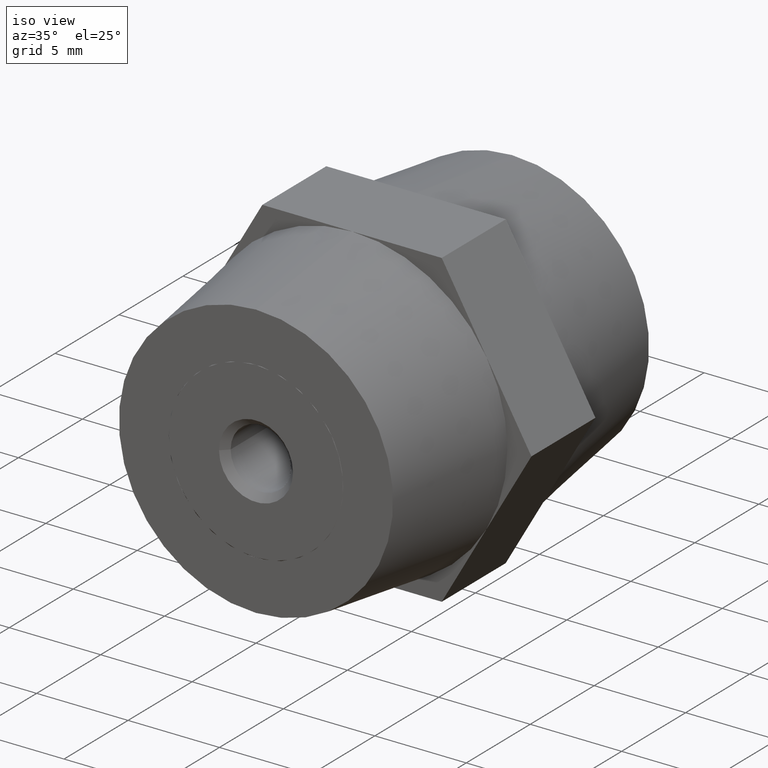
[diagram: clean part render]
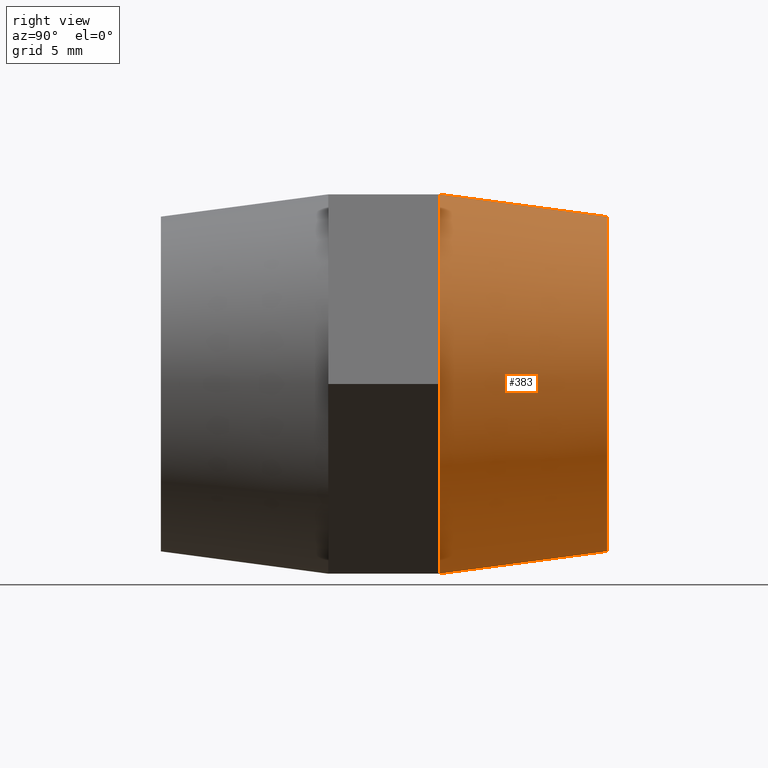
[diagram: tour spotlight — one face highlighted and labeled with its STEP entity id]
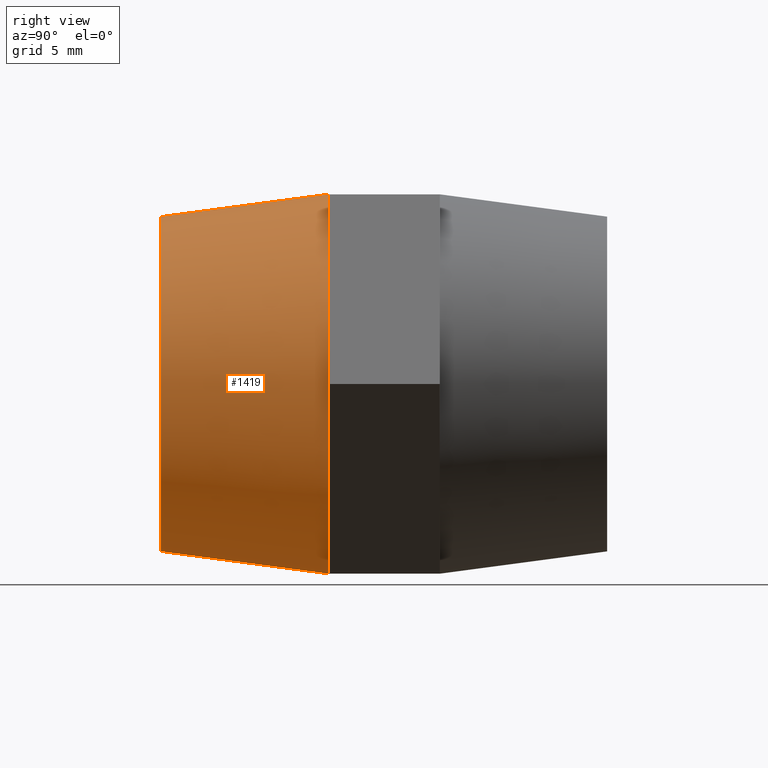
[diagram: tour spotlight — one face highlighted and labeled with its STEP entity id]
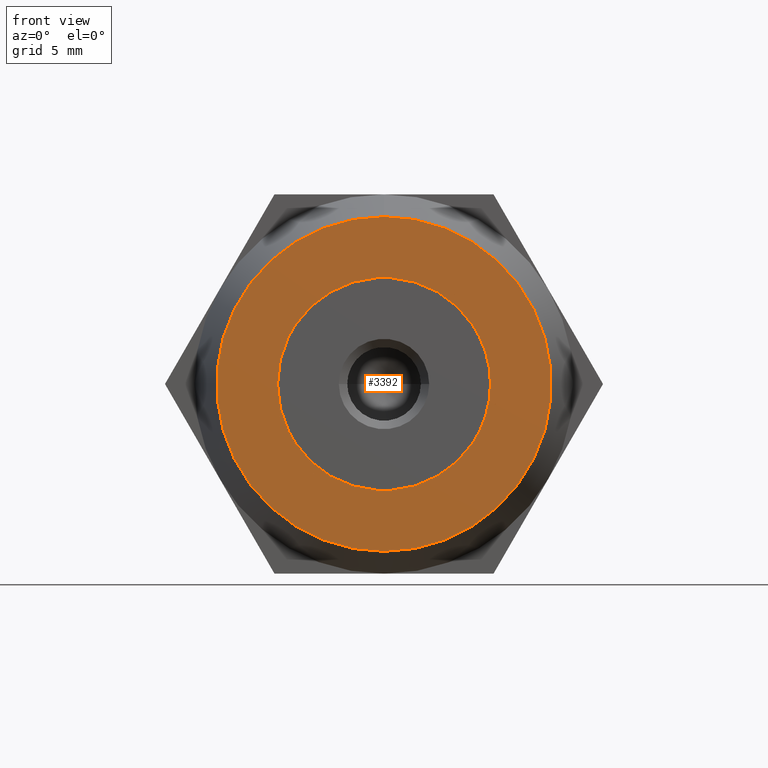
[diagram: tour spotlight — one face highlighted and labeled with its STEP entity id]
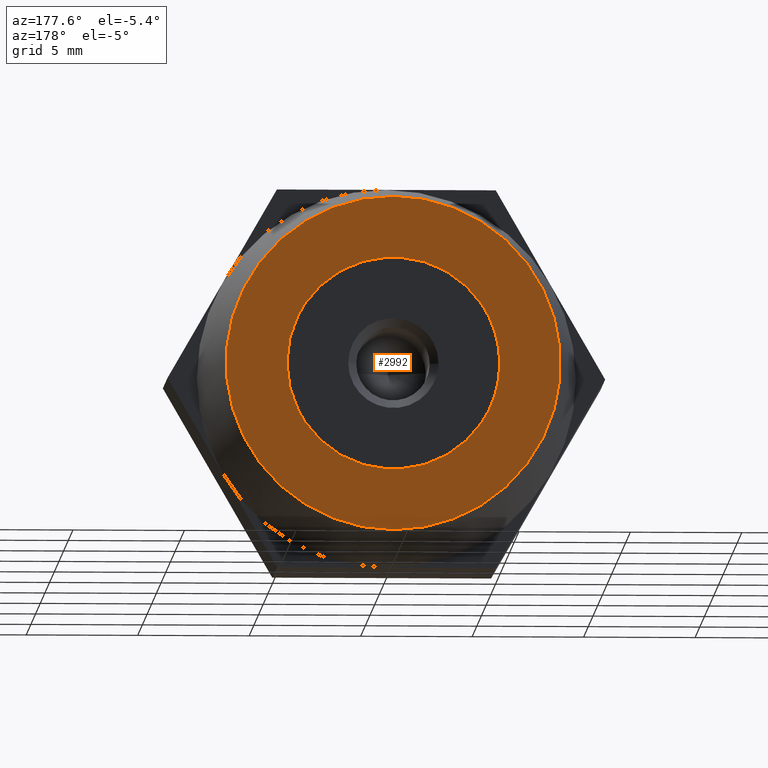
[diagram: tour spotlight — one face highlighted and labeled with its STEP entity id]
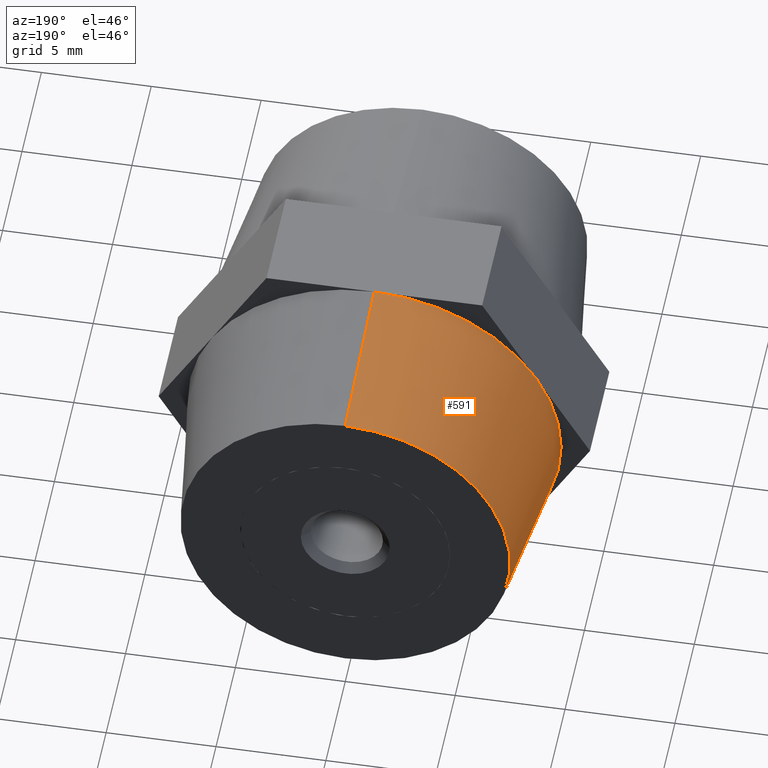
[diagram: tour spotlight — one face highlighted and labeled with its STEP entity id]
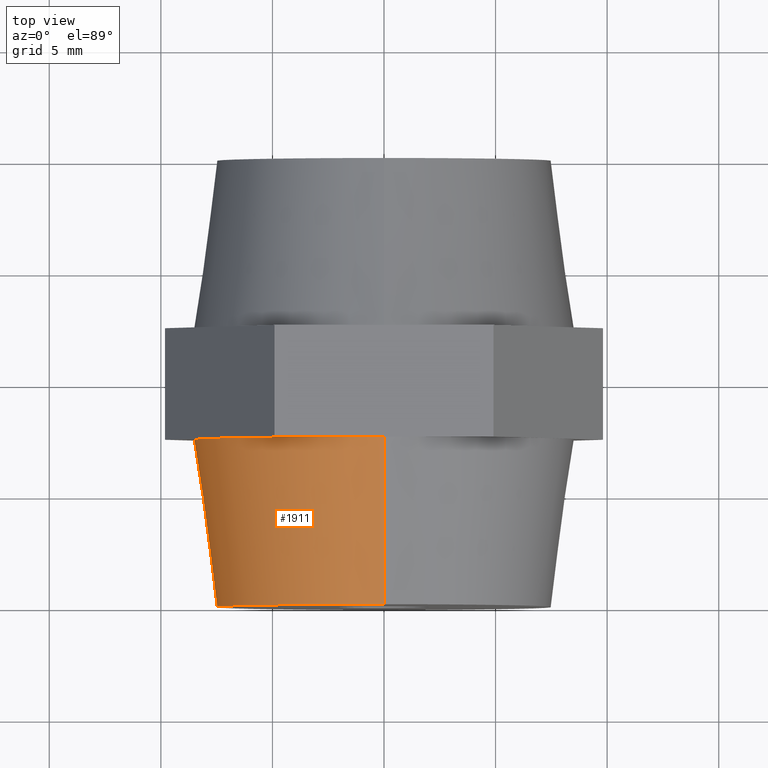
[diagram: tour spotlight — one face highlighted and labeled with its STEP entity id]
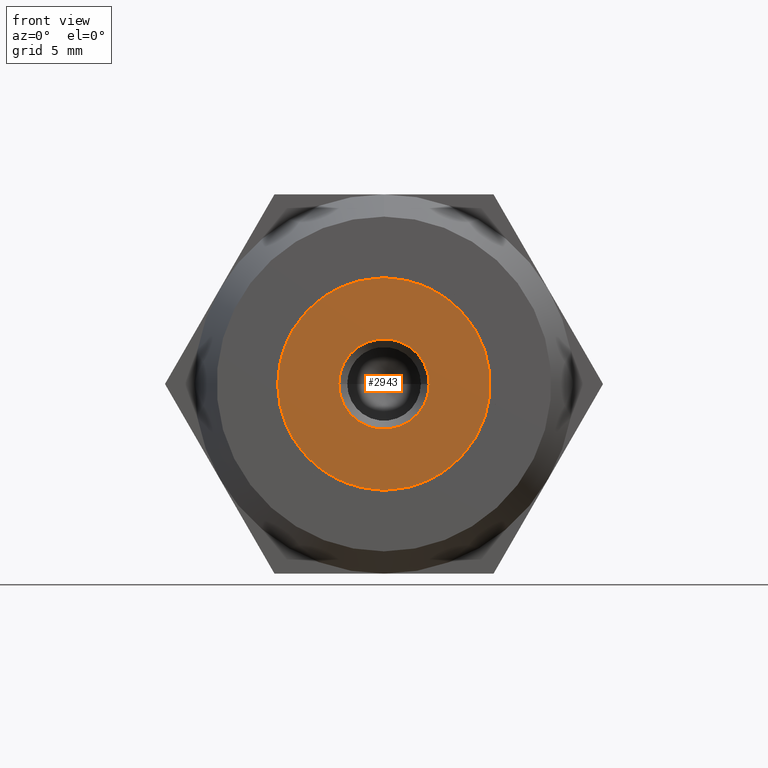
[diagram: tour spotlight — one face highlighted and labeled with its STEP entity id]
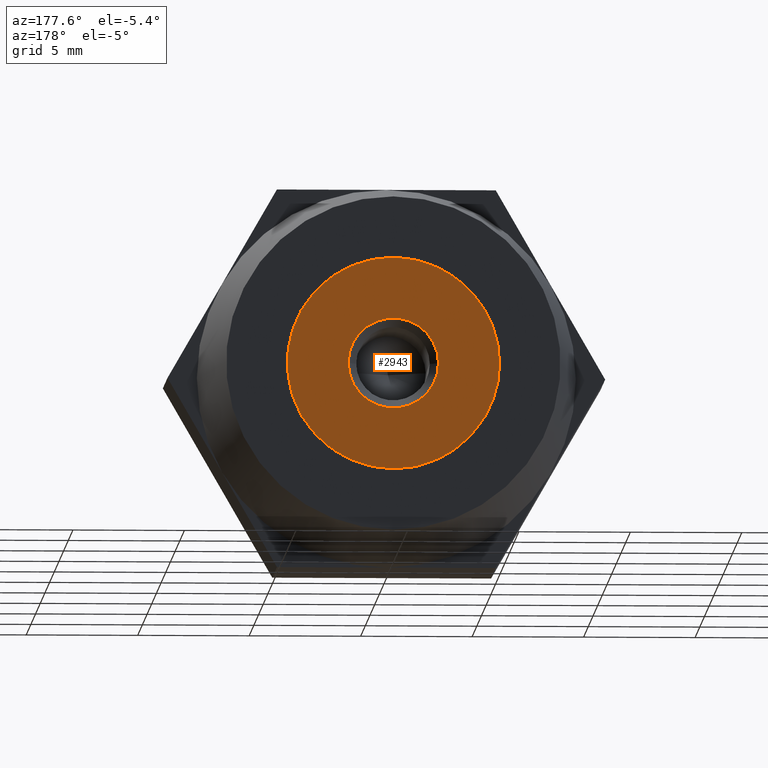
[diagram: tour spotlight — one face highlighted and labeled with its STEP entity id]
A machine part: a face-by-face anatomy tour. The part has 162 B-rep faces; the first image is the clean iso view, then the 8 largest visible faces are spotlighted one at a time (largest first), each with its STEP entity span.

Face 1 — right view, entity #383. In plain terms, the highlighted conical surface has half-angle 7.595 deg.
Definition (entity closure, byte-faithful):
#18 = ORIENTED_EDGE ( 'NONE', *, *, #3095, .T. ) ;
#34 = EDGE_CURVE ( 'NONE', #3530, #1343, #3333, .T. ) ;
#206 = DIRECTION ( 'NONE',  ( 0.0000000000000000000, -0.9912279006826346700, -0.1321637200910179600 ) ) ;
#244 = DIRECTION ( 'NONE',  ( 0.0000000000000000000, 0.0000000000000000000, 1.000000000000000000 ) ) ;
#383 = ADVANCED_FACE ( 'NONE', ( #2794 ), #2966, .T. ) ;
#404 = DIRECTION ( 'NONE',  ( 0.0000000000000000000, 1.000000000000000000, 0.0000000000000000000 ) ) ;
#412 = EDGE_CURVE ( 'NONE', #1343, #2049, #1372, .T. ) ;
#560 = CIRCLE ( 'NONE', #1794, 8.500000000000000000 ) ;
#678 = DIRECTION ( 'NONE',  ( 0.0000000000000000000, 0.0000000000000000000, 1.000000000000000000 ) ) ;
#699 = VERTEX_POINT ( 'NONE', #3367 ) ;
#710 = EDGE_LOOP ( 'NONE', ( #2679, #2877, #2391, #18, #2234, #1795 ) ) ;
#823 = CARTESIAN_POINT ( 'NONE',  ( 9.184850993605147900E-016, 10.00000000000000000, 7.500000000000000000 ) ) ;
#915 = CARTESIAN_POINT ( 'NONE',  ( 9.797174393178825700E-016, 10.00000000000000000, 7.500000000000000000 ) ) ;
#931 = DIRECTION ( 'NONE',  ( 0.0000000000000000000, 0.0000000000000000000, 1.000000000000000000 ) ) ;
#1012 = EDGE_CURVE ( 'NONE', #699, #2049, #560, .T. ) ;
#1082 = CARTESIAN_POINT ( 'NONE',  ( -1.502314598737160000E-015, 2.500000000000000000, 8.500000000000000000 ) ) ;
#1125 = CARTESIAN_POINT ( 'NONE',  ( 0.0000000000000000000, 10.00000000000000000, -7.500000000000000000 ) ) ;
#1343 = VERTEX_POINT ( 'NONE', #1125 ) ;
#1372 = LINE ( 'NONE', #3218, #3153 ) ;
#1399 = CARTESIAN_POINT ( 'NONE',  ( 0.0000000000000000000, 10.00000000000000000, 0.0000000000000000000 ) ) ;
#1401 = EDGE_CURVE ( 'NONE', #3530, #3276, #3365, .T. ) ;
#1410 = DIRECTION ( 'NONE',  ( 0.0000000000000000000, -1.000000000000000000, 0.0000000000000000000 ) ) ;
#1462 = CARTESIAN_POINT ( 'NONE',  ( 0.0000000000000000000, 10.00000000000000000, 0.0000000000000000000 ) ) ;
#1532 = AXIS2_PLACEMENT_3D ( 'NONE', #1399, #1410, #3466 ) ;
#1794 = AXIS2_PLACEMENT_3D ( 'NONE', #2196, #404, #931 ) ;
#1795 = ORIENTED_EDGE ( 'NONE', *, *, #412, .F. ) ;
#1867 = DIRECTION ( 'NONE',  ( 0.0000000000000000000, 1.000000000000000000, 0.0000000000000000000 ) ) ;
#2049 = VERTEX_POINT ( 'NONE', #3102 ) ;
#2051 = DIRECTION ( 'NONE',  ( 0.0000000000000000000, 1.000000000000000000, 0.0000000000000000000 ) ) ;
#2144 = CARTESIAN_POINT ( 'NONE',  ( 0.0000000000000000000, 2.500000000000000000, 0.0000000000000000000 ) ) ;
#2159 = DIRECTION ( 'NONE',  ( 0.0000000000000000000, 0.0000000000000000000, 1.000000000000000000 ) ) ;
#2182 = AXIS2_PLACEMENT_3D ( 'NONE', #2144, #2490, #2159 ) ;
#2196 = CARTESIAN_POINT ( 'NONE',  ( 0.0000000000000000000, 2.500000000000000000, 0.0000000000000000000 ) ) ;
#2234 = ORIENTED_EDGE ( 'NONE', *, *, #1012, .T. ) ;
#2362 = DIRECTION ( 'NONE',  ( 1.618538767728719100E-017, -0.9912279006826346700, 0.1321637200910179600 ) ) ;
#2391 = ORIENTED_EDGE ( 'NONE', *, *, #3765, .T. ) ;
#2474 = CARTESIAN_POINT ( 'NONE',  ( 0.0000000000000000000, 2.500000000000000000, 0.0000000000000000000 ) ) ;
#2480 = CARTESIAN_POINT ( 'NONE',  ( 7.361215932167730200, 2.500000000000000000, 4.250000000000000000 ) ) ;
#2490 = DIRECTION ( 'NONE',  ( 0.0000000000000000000, 1.000000000000000000, 0.0000000000000000000 ) ) ;
#2602 = CIRCLE ( 'NONE', #2182, 8.500000000000000000 ) ;
#2679 = ORIENTED_EDGE ( 'NONE', *, *, #34, .F. ) ;
#2688 = CIRCLE ( 'NONE', #3002, 8.500000000000000000 ) ;
#2794 = FACE_OUTER_BOUND ( 'NONE', #710, .T. ) ;
#2871 = VECTOR ( 'NONE', #2362, 1000.000000000000100 ) ;
#2877 = ORIENTED_EDGE ( 'NONE', *, *, #1401, .T. ) ;
#2966 = CONICAL_SURFACE ( 'NONE', #1532, 7.500000000000000000, 0.1325515322966740500 ) ;
#3002 = AXIS2_PLACEMENT_3D ( 'NONE', #2474, #1867, #678 ) ;
#3095 = EDGE_CURVE ( 'NONE', #3558, #699, #2688, .T. ) ;
#3102 = CARTESIAN_POINT ( 'NONE',  ( 0.0000000000000000000, 2.500000000000000000, -8.500000000000000000 ) ) ;
#3153 = VECTOR ( 'NONE', #206, 1000.000000000000100 ) ;
#3218 = CARTESIAN_POINT ( 'NONE',  ( 0.0000000000000000000, 10.00000000000000000, -7.500000000000000000 ) ) ;
#3276 = VERTEX_POINT ( 'NONE', #1082 ) ;
#3333 = CIRCLE ( 'NONE', #3534, 7.500000000000000000 ) ;
#3365 = LINE ( 'NONE', #823, #2871 ) ;
#3367 = CARTESIAN_POINT ( 'NONE',  ( 7.361215932167730200, 2.500000000000000000, -4.250000000000000000 ) ) ;
#3466 = DIRECTION ( 'NONE',  ( 0.0000000000000000000, 0.0000000000000000000, -1.000000000000000000 ) ) ;
#3530 = VERTEX_POINT ( 'NONE', #915 ) ;
#3534 = AXIS2_PLACEMENT_3D ( 'NONE', #1462, #2051, #244 ) ;
#3558 = VERTEX_POINT ( 'NONE', #2480 ) ;
#3765 = EDGE_CURVE ( 'NONE', #3276, #3558, #2602, .T. ) ;

Face 2 — right view, entity #1419. In plain terms, the highlighted conical surface has half-angle 7.595 deg.
Definition (entity closure, byte-faithful):
#43 = VERTEX_POINT ( 'NONE', #3252 ) ;
#121 = CIRCLE ( 'NONE', #2457, 7.500000000000000000 ) ;
#229 = DIRECTION ( 'NONE',  ( 0.0000000000000000000, 0.0000000000000000000, 1.000000000000000000 ) ) ;
#287 = CIRCLE ( 'NONE', #2941, 8.500000000000000000 ) ;
#311 = VERTEX_POINT ( 'NONE', #3759 ) ;
#314 = CARTESIAN_POINT ( 'NONE',  ( -1.502314598737160000E-015, -2.500000000000000000, 8.500000000000000000 ) ) ;
#446 = VECTOR ( 'NONE', #3257, 1000.000000000000100 ) ;
#453 = EDGE_CURVE ( 'NONE', #1626, #311, #2122, .T. ) ;
#511 = DIRECTION ( 'NONE',  ( 0.0000000000000000000, 0.0000000000000000000, 1.000000000000000000 ) ) ;
#537 = CARTESIAN_POINT ( 'NONE',  ( 0.0000000000000000000, -2.500000000000000000, 0.0000000000000000000 ) ) ;
#583 = VERTEX_POINT ( 'NONE', #314 ) ;
#585 = CARTESIAN_POINT ( 'NONE',  ( 0.0000000000000000000, -2.500000000000000000, 8.500000000000000000 ) ) ;
#811 = LINE ( 'NONE', #585, #3013 ) ;
#886 = VERTEX_POINT ( 'NONE', #1841 ) ;
#925 = DIRECTION ( 'NONE',  ( 0.0000000000000000000, 0.9912279006826346700, 0.1321637200910183700 ) ) ;
#1055 = DIRECTION ( 'NONE',  ( 0.0000000000000000000, 0.0000000000000000000, 1.000000000000000000 ) ) ;
#1258 = AXIS2_PLACEMENT_3D ( 'NONE', #537, #2633, #511 ) ;
#1263 = FACE_OUTER_BOUND ( 'NONE', #2892, .T. ) ;
#1419 = ADVANCED_FACE ( 'NONE', ( #1263 ), #2295, .T. ) ;
#1467 = DIRECTION ( 'NONE',  ( 0.0000000000000000000, 1.000000000000000000, 0.0000000000000000000 ) ) ;
#1550 = AXIS2_PLACEMENT_3D ( 'NONE', #3789, #2281, #1055 ) ;
#1579 = EDGE_CURVE ( 'NONE', #311, #886, #3750, .T. ) ;
#1619 = ORIENTED_EDGE ( 'NONE', *, *, #2485, .F. ) ;
#1626 = VERTEX_POINT ( 'NONE', #3170 ) ;
#1738 = ORIENTED_EDGE ( 'NONE', *, *, #2854, .T. ) ;
#1797 = CARTESIAN_POINT ( 'NONE',  ( 9.797174393178825700E-016, -10.00000000000000000, -7.500000000000000900 ) ) ;
#1804 = DIRECTION ( 'NONE',  ( 0.0000000000000000000, 0.0000000000000000000, 1.000000000000000000 ) ) ;
#1841 = CARTESIAN_POINT ( 'NONE',  ( 0.0000000000000000000, -2.500000000000000000, -8.500000000000000000 ) ) ;
#1855 = VERTEX_POINT ( 'NONE', #1797 ) ;
#2045 = DIRECTION ( 'NONE',  ( 0.0000000000000000000, 1.000000000000000000, 0.0000000000000000000 ) ) ;
#2052 = ORIENTED_EDGE ( 'NONE', *, *, #453, .F. ) ;
#2122 = CIRCLE ( 'NONE', #1258, 8.500000000000000000 ) ;
#2281 = DIRECTION ( 'NONE',  ( 0.0000000000000000000, 1.000000000000000000, 0.0000000000000000000 ) ) ;
#2295 = CONICAL_SURFACE ( 'NONE', #2406, 8.500000000000000000, 0.1325515322966744100 ) ;
#2308 = DIRECTION ( 'NONE',  ( 0.0000000000000000000, 1.000000000000000000, 0.0000000000000000000 ) ) ;
#2406 = AXIS2_PLACEMENT_3D ( 'NONE', #3794, #2045, #229 ) ;
#2457 = AXIS2_PLACEMENT_3D ( 'NONE', #2931, #2308, #2895 ) ;
#2485 = EDGE_CURVE ( 'NONE', #583, #1626, #287, .T. ) ;
#2633 = DIRECTION ( 'NONE',  ( 0.0000000000000000000, 1.000000000000000000, 0.0000000000000000000 ) ) ;
#2713 = CARTESIAN_POINT ( 'NONE',  ( 0.0000000000000000000, -2.500000000000000000, 0.0000000000000000000 ) ) ;
#2854 = EDGE_CURVE ( 'NONE', #1855, #886, #3569, .T. ) ;
#2892 = EDGE_LOOP ( 'NONE', ( #3536, #1738, #3500, #2052, #1619, #3360 ) ) ;
#2895 = DIRECTION ( 'NONE',  ( 0.0000000000000000000, 0.0000000000000000000, 1.000000000000000000 ) ) ;
#2931 = CARTESIAN_POINT ( 'NONE',  ( 0.0000000000000000000, -10.00000000000000000, 0.0000000000000000000 ) ) ;
#2941 = AXIS2_PLACEMENT_3D ( 'NONE', #2713, #1467, #1804 ) ;
#3013 = VECTOR ( 'NONE', #925, 1000.000000000000100 ) ;
#3069 = CARTESIAN_POINT ( 'NONE',  ( 1.040949779275250100E-015, -2.500000000000000000, -8.500000000000000000 ) ) ;
#3170 = CARTESIAN_POINT ( 'NONE',  ( 7.361215932167730200, -2.500000000000000000, 4.250000000000000000 ) ) ;
#3252 = CARTESIAN_POINT ( 'NONE',  ( 0.0000000000000000000, -10.00000000000000000, 7.500000000000000000 ) ) ;
#3257 = DIRECTION ( 'NONE',  ( 1.618538767728723700E-017, 0.9912279006826346700, -0.1321637200910183700 ) ) ;
#3322 = EDGE_CURVE ( 'NONE', #43, #1855, #121, .T. ) ;
#3360 = ORIENTED_EDGE ( 'NONE', *, *, #3585, .F. ) ;
#3500 = ORIENTED_EDGE ( 'NONE', *, *, #1579, .F. ) ;
#3536 = ORIENTED_EDGE ( 'NONE', *, *, #3322, .T. ) ;
#3569 = LINE ( 'NONE', #3069, #446 ) ;
#3585 = EDGE_CURVE ( 'NONE', #43, #583, #811, .T. ) ;
#3750 = CIRCLE ( 'NONE', #1550, 8.500000000000000000 ) ;
#3759 = CARTESIAN_POINT ( 'NONE',  ( 7.361215932167730200, -2.500000000000000000, -4.250000000000000000 ) ) ;
#3789 = CARTESIAN_POINT ( 'NONE',  ( 0.0000000000000000000, -2.500000000000000000, 0.0000000000000000000 ) ) ;
#3794 = CARTESIAN_POINT ( 'NONE',  ( 0.0000000000000000000, -2.500000000000000000, 0.0000000000000000000 ) ) ;

Face 3 — front view, entity #3392. In plain terms, the highlighted planar face has unit normal (0, -1, 0).
Definition (entity closure, byte-faithful):
#9 = CIRCLE ( 'NONE', #3613, 4.772500000000000000 ) ;
#21 = VECTOR ( 'NONE', #1906, 1000.000000000000000 ) ;
#43 = VERTEX_POINT ( 'NONE', #3252 ) ;
#62 = VERTEX_POINT ( 'NONE', #366 ) ;
#107 = ORIENTED_EDGE ( 'NONE', *, *, #1558, .T. ) ;
#117 = ORIENTED_EDGE ( 'NONE', *, *, #1069, .T. ) ;
#121 = CIRCLE ( 'NONE', #2457, 7.500000000000000000 ) ;
#134 = CARTESIAN_POINT ( 'NONE',  ( -1.734723475976804900E-015, -10.00000000000000000, -1.734723475976804900E-015 ) ) ;
#154 = ORIENTED_EDGE ( 'NONE', *, *, #3189, .T. ) ;
#156 = LINE ( 'NONE', #2094, #1460 ) ;
#158 = VECTOR ( 'NONE', #2760, 1000.000000000000000 ) ;
#253 = VERTEX_POINT ( 'NONE', #2440 ) ;
#292 = VERTEX_POINT ( 'NONE', #1056 ) ;
#334 = FACE_OUTER_BOUND ( 'NONE', #3450, .T. ) ;
#366 = CARTESIAN_POINT ( 'NONE',  ( -3.970052008956699700, -10.00000000000000000, -2.648668211796129800 ) ) ;
#367 = VERTEX_POINT ( 'NONE', #2904 ) ;
#401 = AXIS2_PLACEMENT_3D ( 'NONE', #134, #1344, #1039 ) ;
#475 = ORIENTED_EDGE ( 'NONE', *, *, #2491, .T. ) ;
#504 = AXIS2_PLACEMENT_3D ( 'NONE', #3344, #2181, #1232 ) ;
#514 = CARTESIAN_POINT ( 'NONE',  ( -1.734723475976804900E-015, -10.00000000000000000, -1.734723475976804900E-015 ) ) ;
#525 = PLANE ( 'NONE',  #1852 ) ;
#626 = ORIENTED_EDGE ( 'NONE', *, *, #1102, .F. ) ;
#641 = VERTEX_POINT ( 'NONE', #995 ) ;
#728 = VERTEX_POINT ( 'NONE', #1311 ) ;
#756 = ORIENTED_EDGE ( 'NONE', *, *, #2982, .T. ) ;
#866 = EDGE_CURVE ( 'NONE', #292, #2881, #3103, .T. ) ;
#947 = CARTESIAN_POINT ( 'NONE',  ( -4.278839962090105000, -10.00000000000000000, -2.113831788203874900 ) ) ;
#959 = CARTESIAN_POINT ( 'NONE',  ( -5.999445985523420800, -10.00000000000000000, -0.8663452641916259400 ) ) ;
#995 = CARTESIAN_POINT ( 'NONE',  ( 0.3087879531335345200, -10.00000000000000000, -4.762500000000000200 ) ) ;
#1020 = CARTESIAN_POINT ( 'NONE',  ( -1.734723475976804900E-015, -10.00000000000000000, -1.734723475976804900E-015 ) ) ;
#1027 = ORIENTED_EDGE ( 'NONE', *, *, #2764, .T. ) ;
#1030 = CARTESIAN_POINT ( 'NONE',  ( 3.970052008956985300, -10.00000000000000000, 2.648668211795695000 ) ) ;
#1039 = DIRECTION ( 'NONE',  ( 0.0000000000000000000, 0.0000000000000000000, -1.000000000000000000 ) ) ;
#1046 = LINE ( 'NONE', #3084, #1695 ) ;
#1056 = CARTESIAN_POINT ( 'NONE',  ( -0.3087879531329175100, -10.00000000000000000, 4.762500000000000200 ) ) ;
#1069 = EDGE_CURVE ( 'NONE', #2014, #2736, #1317, .T. ) ;
#1102 = EDGE_CURVE ( 'NONE', #1855, #43, #3615, .T. ) ;
#1186 = DIRECTION ( 'NONE',  ( -0.0000000000000000000, 1.000000000000000000, -0.0000000000000000000 ) ) ;
#1192 = EDGE_CURVE ( 'NONE', #62, #2986, #2960, .T. ) ;
#1231 = ORIENTED_EDGE ( 'NONE', *, *, #2636, .T. ) ;
#1232 = DIRECTION ( 'NONE',  ( -5.329070518200751400E-015, 0.0000000000000000000, -1.000000000000000000 ) ) ;
#1305 = EDGE_CURVE ( 'NONE', #2986, #728, #9, .T. ) ;
#1311 = CARTESIAN_POINT ( 'NONE',  ( -4.278839962089940700, -10.00000000000000000, 2.113831788204209700 ) ) ;
#1317 = CIRCLE ( 'NONE', #3011, 4.772500000000000000 ) ;
#1333 = LINE ( 'NONE', #959, #158 ) ;
#1344 = DIRECTION ( 'NONE',  ( -0.0000000000000000000, 1.000000000000000000, -0.0000000000000000000 ) ) ;
#1348 = CARTESIAN_POINT ( 'NONE',  ( 0.0000000000000000000, -10.00000000000000000, 0.0000000000000000000 ) ) ;
#1416 = LINE ( 'NONE', #2047, #2177 ) ;
#1460 = VECTOR ( 'NONE', #2714, 1000.000000000000100 ) ;
#1496 = CIRCLE ( 'NONE', #1715, 4.772500000000000000 ) ;
#1500 = VECTOR ( 'NONE', #2865, 1000.000000000000000 ) ;
#1558 = EDGE_CURVE ( 'NONE', #2881, #3263, #1496, .T. ) ;
#1569 = CARTESIAN_POINT ( 'NONE',  ( 4.772499999999998200, -10.00000000000000000, -1.734723475976804900E-015 ) ) ;
#1672 = DIRECTION ( 'NONE',  ( 0.0000000000000000000, -1.000000000000000000, 0.0000000000000000000 ) ) ;
#1695 = VECTOR ( 'NONE', #3683, 1000.000000000000000 ) ;
#1715 = AXIS2_PLACEMENT_3D ( 'NONE', #3317, #3727, #2019 ) ;
#1797 = CARTESIAN_POINT ( 'NONE',  ( 9.797174393178825700E-016, -10.00000000000000000, -7.500000000000000900 ) ) ;
#1852 = AXIS2_PLACEMENT_3D ( 'NONE', #3781, #1672, #2334 ) ;
#1855 = VERTEX_POINT ( 'NONE', #1797 ) ;
#1872 = CARTESIAN_POINT ( 'NONE',  ( -1.734723475976804900E-015, -10.00000000000000000, -1.734723475976804900E-015 ) ) ;
#1906 = DIRECTION ( 'NONE',  ( 1.000000000000000000, 0.0000000000000000000, -1.261786539621752000E-015 ) ) ;
#1929 = DIRECTION ( 'NONE',  ( 0.0000000000000000000, 0.0000000000000000000, 1.000000000000000000 ) ) ;
#1955 = CIRCLE ( 'NONE', #504, 4.772500000000000000 ) ;
#1999 = CIRCLE ( 'NONE', #3185, 4.772500000000000000 ) ;
#2014 = VERTEX_POINT ( 'NONE', #1569 ) ;
#2019 = DIRECTION ( 'NONE',  ( -1.776356839400250500E-015, 0.0000000000000000000, -1.000000000000000000 ) ) ;
#2047 = CARTESIAN_POINT ( 'NONE',  ( 2.249445985523410100, -10.00000000000000000, 5.628845264191680200 ) ) ;
#2054 = DIRECTION ( 'NONE',  ( -0.0000000000000000000, 1.000000000000000000, -0.0000000000000000000 ) ) ;
#2065 = CARTESIAN_POINT ( 'NONE',  ( -1.734723475976804900E-015, -10.00000000000000000, -1.734723475976804900E-015 ) ) ;
#2094 = CARTESIAN_POINT ( 'NONE',  ( 2.249445985523425200, -10.00000000000000000, -5.628845264191669500 ) ) ;
#2175 = DIRECTION ( 'NONE',  ( -0.0000000000000000000, 1.000000000000000000, -0.0000000000000000000 ) ) ;
#2177 = VECTOR ( 'NONE', #3579, 1000.000000000000100 ) ;
#2181 = DIRECTION ( 'NONE',  ( -0.0000000000000000000, 1.000000000000000000, -0.0000000000000000000 ) ) ;
#2256 = DIRECTION ( 'NONE',  ( 0.0000000000000000000, 1.000000000000000000, 0.0000000000000000000 ) ) ;
#2270 = ORIENTED_EDGE ( 'NONE', *, *, #3736, .T. ) ;
#2280 = EDGE_CURVE ( 'NONE', #3263, #3044, #1416, .T. ) ;
#2308 = DIRECTION ( 'NONE',  ( 0.0000000000000000000, 1.000000000000000000, 0.0000000000000000000 ) ) ;
#2334 = DIRECTION ( 'NONE',  ( 0.0000000000000000000, 0.0000000000000000000, -1.000000000000000000 ) ) ;
#2356 = AXIS2_PLACEMENT_3D ( 'NONE', #1348, #2256, #1929 ) ;
#2375 = ORIENTED_EDGE ( 'NONE', *, *, #2658, .T. ) ;
#2383 = CARTESIAN_POINT ( 'NONE',  ( 3.970052008957019900, -10.00000000000000000, -2.648668211795644800 ) ) ;
#2397 = DIRECTION ( 'NONE',  ( 0.0000000000000000000, 0.0000000000000000000, -1.000000000000000000 ) ) ;
#2418 = CARTESIAN_POINT ( 'NONE',  ( -7.500000000000000000, -10.00000000000000000, 4.762500000000000200 ) ) ;
#2440 = CARTESIAN_POINT ( 'NONE',  ( -0.3087879531335669900, -10.00000000000016000, -4.762500000000000200 ) ) ;
#2457 = AXIS2_PLACEMENT_3D ( 'NONE', #2931, #2308, #2895 ) ;
#2488 = VERTEX_POINT ( 'NONE', #2383 ) ;
#2491 = EDGE_CURVE ( 'NONE', #2488, #641, #1999, .T. ) ;
#2636 = EDGE_CURVE ( 'NONE', #728, #367, #1333, .T. ) ;
#2658 = EDGE_CURVE ( 'NONE', #3044, #2014, #1955, .T. ) ;
#2667 = CARTESIAN_POINT ( 'NONE',  ( 0.3087879531329260100, -10.00000000000000000, 4.762500000000000200 ) ) ;
#2714 = DIRECTION ( 'NONE',  ( -0.5000000000000003300, 0.0000000000000000000, -0.8660254037844383700 ) ) ;
#2736 = VERTEX_POINT ( 'NONE', #3401 ) ;
#2748 = ORIENTED_EDGE ( 'NONE', *, *, #866, .T. ) ;
#2760 = DIRECTION ( 'NONE',  ( 0.4999999999999998900, 0.0000000000000000000, 0.8660254037844387100 ) ) ;
#2764 = EDGE_CURVE ( 'NONE', #253, #62, #3332, .T. ) ;
#2839 = ORIENTED_EDGE ( 'NONE', *, *, #1305, .T. ) ;
#2865 = DIRECTION ( 'NONE',  ( -0.4999999999999998900, 0.0000000000000000000, 0.8660254037844387100 ) ) ;
#2881 = VERTEX_POINT ( 'NONE', #2667 ) ;
#2895 = DIRECTION ( 'NONE',  ( 0.0000000000000000000, 0.0000000000000000000, 1.000000000000000000 ) ) ;
#2904 = CARTESIAN_POINT ( 'NONE',  ( -3.970052008956904500, -10.00000000000000000, 2.648668211795819800 ) ) ;
#2930 = FACE_BOUND ( 'NONE', #3715, .T. ) ;
#2931 = CARTESIAN_POINT ( 'NONE',  ( 0.0000000000000000000, -10.00000000000000000, 0.0000000000000000000 ) ) ;
#2946 = DIRECTION ( 'NONE',  ( 0.0000000000000000000, 0.0000000000000000000, -1.000000000000000000 ) ) ;
#2960 = LINE ( 'NONE', #3761, #1500 ) ;
#2982 = EDGE_CURVE ( 'NONE', #2736, #2488, #156, .T. ) ;
#2986 = VERTEX_POINT ( 'NONE', #947 ) ;
#3011 = AXIS2_PLACEMENT_3D ( 'NONE', #1020, #3703, #3413 ) ;
#3044 = VERTEX_POINT ( 'NONE', #3319 ) ;
#3077 = DIRECTION ( 'NONE',  ( -8.881784197001252300E-016, 0.0000000000000000000, -1.000000000000000000 ) ) ;
#3084 = CARTESIAN_POINT ( 'NONE',  ( -7.500000000000000000, -10.00000000000000000, -4.762500000000000200 ) ) ;
#3103 = LINE ( 'NONE', #2418, #21 ) ;
#3185 = AXIS2_PLACEMENT_3D ( 'NONE', #2065, #1186, #2397 ) ;
#3189 = EDGE_CURVE ( 'NONE', #641, #253, #1046, .T. ) ;
#3252 = CARTESIAN_POINT ( 'NONE',  ( 0.0000000000000000000, -10.00000000000000000, 7.500000000000000000 ) ) ;
#3263 = VERTEX_POINT ( 'NONE', #1030 ) ;
#3317 = CARTESIAN_POINT ( 'NONE',  ( -1.734723475976804900E-015, -10.00000000000000000, -1.734723475976804900E-015 ) ) ;
#3319 = CARTESIAN_POINT ( 'NONE',  ( 4.278839962089860700, -10.00000000000000000, 2.113831788204365100 ) ) ;
#3322 = EDGE_CURVE ( 'NONE', #43, #1855, #121, .T. ) ;
#3324 = ORIENTED_EDGE ( 'NONE', *, *, #2280, .T. ) ;
#3332 = CIRCLE ( 'NONE', #401, 4.772500000000000000 ) ;
#3344 = CARTESIAN_POINT ( 'NONE',  ( -1.734723475976804900E-015, -10.00000000000000000, -1.734723475976804900E-015 ) ) ;
#3392 = ADVANCED_FACE ( 'NONE', ( #334, #2930 ), #525, .T. ) ;
#3401 = CARTESIAN_POINT ( 'NONE',  ( 4.278839962089835000, -10.00000000000000000, -2.113831788204410000 ) ) ;
#3413 = DIRECTION ( 'NONE',  ( -2.664535259100375700E-015, 0.0000000000000000000, -1.000000000000000000 ) ) ;
#3450 = EDGE_LOOP ( 'NONE', ( #3488, #626 ) ) ;
#3488 = ORIENTED_EDGE ( 'NONE', *, *, #3322, .F. ) ;
#3577 = AXIS2_PLACEMENT_3D ( 'NONE', #1872, #2175, #3077 ) ;
#3579 = DIRECTION ( 'NONE',  ( 0.5000000000000003300, 0.0000000000000000000, -0.8660254037844383700 ) ) ;
#3613 = AXIS2_PLACEMENT_3D ( 'NONE', #514, #2054, #2946 ) ;
#3615 = CIRCLE ( 'NONE', #2356, 7.500000000000000000 ) ;
#3683 = DIRECTION ( 'NONE',  ( -1.000000000000000000, 0.0000000000000000000, 0.0000000000000000000 ) ) ;
#3703 = DIRECTION ( 'NONE',  ( -0.0000000000000000000, 1.000000000000000000, -0.0000000000000000000 ) ) ;
#3715 = EDGE_LOOP ( 'NONE', ( #756, #475, #154, #1027, #3747, #2839, #1231, #2270, #2748, #107, #3324, #2375, #117 ) ) ;
#3727 = DIRECTION ( 'NONE',  ( -0.0000000000000000000, 1.000000000000000000, -0.0000000000000000000 ) ) ;
#3736 = EDGE_CURVE ( 'NONE', #367, #292, #3767, .T. ) ;
#3747 = ORIENTED_EDGE ( 'NONE', *, *, #1192, .T. ) ;
#3761 = CARTESIAN_POINT ( 'NONE',  ( -5.999445985523400400, -10.00000000000000000, 0.8663452641916380400 ) ) ;
#3767 = CIRCLE ( 'NONE', #3577, 4.772500000000000000 ) ;
#3781 = CARTESIAN_POINT ( 'NONE',  ( -7.500000000000000000, -10.00000000000000000, 0.0000000000000000000 ) ) ;

Face 4 — auxiliary view, entity #2992. In plain terms, the highlighted planar face has unit normal (0, 1, 0).
Definition (entity closure, byte-faithful):
#15 = CARTESIAN_POINT ( 'NONE',  ( -7.500000000000000000, 10.00000000000000000, 0.0000000000000000000 ) ) ;
#26 = VERTEX_POINT ( 'NONE', #2942 ) ;
#34 = EDGE_CURVE ( 'NONE', #3530, #1343, #3333, .T. ) ;
#41 = CARTESIAN_POINT ( 'NONE',  ( 4.278839962090110300, 10.00000000000000000, -2.113831788203859800 ) ) ;
#42 = CARTESIAN_POINT ( 'NONE',  ( 0.0000000000000000000, 10.00000000000000000, 0.0000000000000000000 ) ) ;
#52 = LINE ( 'NONE', #264, #513 ) ;
#64 = ORIENTED_EDGE ( 'NONE', *, *, #2291, .T. ) ;
#86 = DIRECTION ( 'NONE',  ( 0.0000000000000000000, 0.0000000000000000000, 1.000000000000000000 ) ) ;
#120 = VERTEX_POINT ( 'NONE', #896 ) ;
#169 = EDGE_CURVE ( 'NONE', #26, #2821, #2455, .T. ) ;
#194 = AXIS2_PLACEMENT_3D ( 'NONE', #2304, #510, #2610 ) ;
#237 = DIRECTION ( 'NONE',  ( -0.5000000000000003300, 0.0000000000000000000, -0.8660254037844383700 ) ) ;
#244 = DIRECTION ( 'NONE',  ( 0.0000000000000000000, 0.0000000000000000000, 1.000000000000000000 ) ) ;
#257 = CARTESIAN_POINT ( 'NONE',  ( 0.0000000000000000000, 10.00000000000000000, 0.0000000000000000000 ) ) ;
#264 = CARTESIAN_POINT ( 'NONE',  ( -7.500000000000000000, 10.00000000000000000, -4.762500000000000200 ) ) ;
#301 = DIRECTION ( 'NONE',  ( -0.0000000000000000000, -1.000000000000000000, -0.0000000000000000000 ) ) ;
#350 = ORIENTED_EDGE ( 'NONE', *, *, #3083, .T. ) ;
#400 = CARTESIAN_POINT ( 'NONE',  ( 4.278839962089940700, 10.00000000000000000, 2.113831788204205300 ) ) ;
#510 = DIRECTION ( 'NONE',  ( -0.0000000000000000000, -1.000000000000000000, -0.0000000000000000000 ) ) ;
#513 = VECTOR ( 'NONE', #3586, 1000.000000000000000 ) ;
#536 = VERTEX_POINT ( 'NONE', #41 ) ;
#540 = CARTESIAN_POINT ( 'NONE',  ( -4.772500000000000000, 10.00000000000000000, 0.0000000000000000000 ) ) ;
#548 = ORIENTED_EDGE ( 'NONE', *, *, #2018, .T. ) ;
#590 = DIRECTION ( 'NONE',  ( 1.776356839400250500E-015, 0.0000000000000000000, 1.000000000000000000 ) ) ;
#624 = CIRCLE ( 'NONE', #1307, 4.772500000000000000 ) ;
#654 = CARTESIAN_POINT ( 'NONE',  ( 0.0000000000000000000, 10.00000000000000000, 0.0000000000000000000 ) ) ;
#684 = VERTEX_POINT ( 'NONE', #400 ) ;
#822 = EDGE_CURVE ( 'NONE', #1910, #3425, #2394, .T. ) ;
#885 = CARTESIAN_POINT ( 'NONE',  ( -5.999445985523440300, 10.00000000000000000, 0.8663452641916199500 ) ) ;
#893 = LINE ( 'NONE', #885, #3633 ) ;
#896 = CARTESIAN_POINT ( 'NONE',  ( 3.970052008956900500, 10.00000000000000000, 2.648668211795830000 ) ) ;
#915 = CARTESIAN_POINT ( 'NONE',  ( 9.797174393178825700E-016, 10.00000000000000000, 7.500000000000000000 ) ) ;
#945 = DIRECTION ( 'NONE',  ( -0.0000000000000000000, -1.000000000000000000, -0.0000000000000000000 ) ) ;
#958 = DIRECTION ( 'NONE',  ( 0.0000000000000000000, 1.000000000000000000, 0.0000000000000000000 ) ) ;
#976 = EDGE_CURVE ( 'NONE', #3425, #3419, #2588, .T. ) ;
#999 = CIRCLE ( 'NONE', #1188, 4.772500000000000000 ) ;
#1084 = LINE ( 'NONE', #2902, #2442 ) ;
#1103 = CARTESIAN_POINT ( 'NONE',  ( -0.3087879531329550400, 10.00000000000000000, 4.762500000000000200 ) ) ;
#1113 = EDGE_LOOP ( 'NONE', ( #350, #2704, #1555, #1536, #2876, #1744, #2618, #3567, #3307, #1473, #64, #2971, #1174 ) ) ;
#1125 = CARTESIAN_POINT ( 'NONE',  ( 0.0000000000000000000, 10.00000000000000000, -7.500000000000000000 ) ) ;
#1171 = DIRECTION ( 'NONE',  ( -0.0000000000000000000, -1.000000000000000000, -0.0000000000000000000 ) ) ;
#1174 = ORIENTED_EDGE ( 'NONE', *, *, #976, .T. ) ;
#1188 = AXIS2_PLACEMENT_3D ( 'NONE', #3043, #2385, #590 ) ;
#1275 = AXIS2_PLACEMENT_3D ( 'NONE', #3334, #945, #3652 ) ;
#1283 = EDGE_CURVE ( 'NONE', #684, #120, #2072, .T. ) ;
#1285 = CARTESIAN_POINT ( 'NONE',  ( 0.0000000000000000000, 10.00000000000000000, 0.0000000000000000000 ) ) ;
#1307 = AXIS2_PLACEMENT_3D ( 'NONE', #2700, #3630, #2420 ) ;
#1313 = CARTESIAN_POINT ( 'NONE',  ( 3.970052008956690400, 10.00000000000000000, -2.648668211796140000 ) ) ;
#1343 = VERTEX_POINT ( 'NONE', #1125 ) ;
#1364 = DIRECTION ( 'NONE',  ( -1.000000000000000000, 0.0000000000000000000, -1.261786539621752000E-015 ) ) ;
#1412 = CIRCLE ( 'NONE', #3054, 4.772500000000000000 ) ;
#1429 = CARTESIAN_POINT ( 'NONE',  ( -5.999445985523440300, 10.00000000000000000, -0.8663452641916209500 ) ) ;
#1462 = CARTESIAN_POINT ( 'NONE',  ( 0.0000000000000000000, 10.00000000000000000, 0.0000000000000000000 ) ) ;
#1468 = CARTESIAN_POINT ( 'NONE',  ( -3.970052008956985300, 10.00000000000000000, 2.648668211795695000 ) ) ;
#1473 = ORIENTED_EDGE ( 'NONE', *, *, #2410, .T. ) ;
#1536 = ORIENTED_EDGE ( 'NONE', *, *, #169, .T. ) ;
#1555 = ORIENTED_EDGE ( 'NONE', *, *, #1883, .T. ) ;
#1573 = CARTESIAN_POINT ( 'NONE',  ( -0.3087879531335360200, 10.00000000000000000, -4.762500000000000200 ) ) ;
#1581 = DIRECTION ( 'NONE',  ( -1.776356839400250500E-015, 0.0000000000000000000, 1.000000000000000000 ) ) ;
#1608 = EDGE_CURVE ( 'NONE', #3414, #3331, #1084, .T. ) ;
#1675 = CARTESIAN_POINT ( 'NONE',  ( 2.249445985523425200, 10.00000000000000000, 5.628845264191660600 ) ) ;
#1682 = DIRECTION ( 'NONE',  ( 0.4999999999999998900, 0.0000000000000000000, 0.8660254037844387100 ) ) ;
#1744 = ORIENTED_EDGE ( 'NONE', *, *, #3060, .T. ) ;
#1799 = EDGE_CURVE ( 'NONE', #120, #3414, #3556, .T. ) ;
#1822 = DIRECTION ( 'NONE',  ( 0.0000000000000000000, 0.0000000000000000000, 1.000000000000000000 ) ) ;
#1883 = EDGE_CURVE ( 'NONE', #2663, #26, #52, .T. ) ;
#1910 = VERTEX_POINT ( 'NONE', #2096 ) ;
#1949 = VECTOR ( 'NONE', #1682, 1000.000000000000000 ) ;
#1995 = FACE_BOUND ( 'NONE', #1113, .T. ) ;
#1996 = AXIS2_PLACEMENT_3D ( 'NONE', #654, #958, #86 ) ;
#2000 = AXIS2_PLACEMENT_3D ( 'NONE', #1285, #3353, #1581 ) ;
#2018 = EDGE_CURVE ( 'NONE', #1343, #3530, #3144, .T. ) ;
#2051 = DIRECTION ( 'NONE',  ( 0.0000000000000000000, 1.000000000000000000, 0.0000000000000000000 ) ) ;
#2057 = AXIS2_PLACEMENT_3D ( 'NONE', #15, #3607, #2431 ) ;
#2072 = LINE ( 'NONE', #1675, #3836 ) ;
#2096 = CARTESIAN_POINT ( 'NONE',  ( -4.278839962089860700, 10.00000000000000000, 2.113831788204365100 ) ) ;
#2291 = EDGE_CURVE ( 'NONE', #2944, #1910, #3482, .T. ) ;
#2294 = CARTESIAN_POINT ( 'NONE',  ( 0.3087879531329429900, 10.00000000000000000, 4.762500000000000200 ) ) ;
#2304 = CARTESIAN_POINT ( 'NONE',  ( 0.0000000000000000000, 10.00000000000000000, 0.0000000000000000000 ) ) ;
#2316 = LINE ( 'NONE', #2589, #1949 ) ;
#2385 = DIRECTION ( 'NONE',  ( -0.0000000000000000000, -1.000000000000000000, -0.0000000000000000000 ) ) ;
#2388 = CARTESIAN_POINT ( 'NONE',  ( -3.970052008957019900, 10.00000000000000000, -2.648668211795644800 ) ) ;
#2394 = CIRCLE ( 'NONE', #3255, 4.772500000000000000 ) ;
#2410 = EDGE_CURVE ( 'NONE', #3331, #2944, #624, .T. ) ;
#2420 = DIRECTION ( 'NONE',  ( 0.0000000000000000000, 0.0000000000000000000, 1.000000000000000000 ) ) ;
#2431 = DIRECTION ( 'NONE',  ( 0.0000000000000000000, 0.0000000000000000000, 1.000000000000000000 ) ) ;
#2442 = VECTOR ( 'NONE', #1364, 1000.000000000000000 ) ;
#2455 = CIRCLE ( 'NONE', #2000, 4.772500000000000000 ) ;
#2588 = CIRCLE ( 'NONE', #1275, 4.772500000000000000 ) ;
#2589 = CARTESIAN_POINT ( 'NONE',  ( 2.249445985523410100, 10.00000000000000000, -5.628845264191640200 ) ) ;
#2610 = DIRECTION ( 'NONE',  ( 0.0000000000000000000, 0.0000000000000000000, 1.000000000000000000 ) ) ;
#2618 = ORIENTED_EDGE ( 'NONE', *, *, #1283, .T. ) ;
#2663 = VERTEX_POINT ( 'NONE', #1573 ) ;
#2700 = CARTESIAN_POINT ( 'NONE',  ( 0.0000000000000000000, 10.00000000000000000, 0.0000000000000000000 ) ) ;
#2704 = ORIENTED_EDGE ( 'NONE', *, *, #3487, .T. ) ;
#2752 = FACE_OUTER_BOUND ( 'NONE', #3034, .T. ) ;
#2821 = VERTEX_POINT ( 'NONE', #1313 ) ;
#2876 = ORIENTED_EDGE ( 'NONE', *, *, #3400, .T. ) ;
#2886 = DIRECTION ( 'NONE',  ( -0.4999999999999998900, 0.0000000000000000000, 0.8660254037844387100 ) ) ;
#2902 = CARTESIAN_POINT ( 'NONE',  ( -7.500000000000000000, 10.00000000000000000, 4.762500000000000200 ) ) ;
#2942 = CARTESIAN_POINT ( 'NONE',  ( 0.3087879531335650000, 10.00000000000016000, -4.762500000000000200 ) ) ;
#2944 = VERTEX_POINT ( 'NONE', #1468 ) ;
#2971 = ORIENTED_EDGE ( 'NONE', *, *, #822, .T. ) ;
#2990 = DIRECTION ( 'NONE',  ( 0.5000000000000003300, 0.0000000000000000000, -0.8660254037844383700 ) ) ;
#2992 = ADVANCED_FACE ( 'NONE', ( #2752, #1995 ), #3628, .T. ) ;
#2999 = CARTESIAN_POINT ( 'NONE',  ( -4.278839962089839400, 10.00000000000000000, -2.113831788204410000 ) ) ;
#3034 = EDGE_LOOP ( 'NONE', ( #548, #3105 ) ) ;
#3043 = CARTESIAN_POINT ( 'NONE',  ( 0.0000000000000000000, 10.00000000000000000, 0.0000000000000000000 ) ) ;
#3054 = AXIS2_PLACEMENT_3D ( 'NONE', #257, #1171, #3533 ) ;
#3060 = EDGE_CURVE ( 'NONE', #536, #684, #999, .T. ) ;
#3083 = EDGE_CURVE ( 'NONE', #3419, #3644, #893, .T. ) ;
#3105 = ORIENTED_EDGE ( 'NONE', *, *, #34, .T. ) ;
#3144 = CIRCLE ( 'NONE', #1996, 7.500000000000000000 ) ;
#3255 = AXIS2_PLACEMENT_3D ( 'NONE', #42, #301, #1822 ) ;
#3307 = ORIENTED_EDGE ( 'NONE', *, *, #1608, .T. ) ;
#3331 = VERTEX_POINT ( 'NONE', #1103 ) ;
#3333 = CIRCLE ( 'NONE', #3534, 7.500000000000000000 ) ;
#3334 = CARTESIAN_POINT ( 'NONE',  ( 0.0000000000000000000, 10.00000000000000000, 0.0000000000000000000 ) ) ;
#3353 = DIRECTION ( 'NONE',  ( -0.0000000000000000000, -1.000000000000000000, -0.0000000000000000000 ) ) ;
#3400 = EDGE_CURVE ( 'NONE', #2821, #536, #2316, .T. ) ;
#3414 = VERTEX_POINT ( 'NONE', #2294 ) ;
#3419 = VERTEX_POINT ( 'NONE', #2999 ) ;
#3425 = VERTEX_POINT ( 'NONE', #540 ) ;
#3482 = LINE ( 'NONE', #1429, #3851 ) ;
#3487 = EDGE_CURVE ( 'NONE', #3644, #2663, #1412, .T. ) ;
#3530 = VERTEX_POINT ( 'NONE', #915 ) ;
#3533 = DIRECTION ( 'NONE',  ( 0.0000000000000000000, 0.0000000000000000000, 1.000000000000000000 ) ) ;
#3534 = AXIS2_PLACEMENT_3D ( 'NONE', #1462, #2051, #244 ) ;
#3556 = CIRCLE ( 'NONE', #194, 4.772500000000000000 ) ;
#3567 = ORIENTED_EDGE ( 'NONE', *, *, #1799, .T. ) ;
#3586 = DIRECTION ( 'NONE',  ( 1.000000000000000000, 0.0000000000000000000, 0.0000000000000000000 ) ) ;
#3607 = DIRECTION ( 'NONE',  ( 0.0000000000000000000, 1.000000000000000000, 0.0000000000000000000 ) ) ;
#3628 = PLANE ( 'NONE',  #2057 ) ;
#3630 = DIRECTION ( 'NONE',  ( -0.0000000000000000000, -1.000000000000000000, -0.0000000000000000000 ) ) ;
#3633 = VECTOR ( 'NONE', #2990, 1000.000000000000100 ) ;
#3644 = VERTEX_POINT ( 'NONE', #2388 ) ;
#3652 = DIRECTION ( 'NONE',  ( 0.0000000000000000000, 0.0000000000000000000, 1.000000000000000000 ) ) ;
#3836 = VECTOR ( 'NONE', #2886, 1000.000000000000000 ) ;
#3851 = VECTOR ( 'NONE', #237, 1000.000000000000100 ) ;

Face 5 — auxiliary view, entity #591. In plain terms, the highlighted conical surface has half-angle 7.595 deg.
Definition (entity closure, byte-faithful):
#86 = DIRECTION ( 'NONE',  ( 0.0000000000000000000, 0.0000000000000000000, 1.000000000000000000 ) ) ;
#181 = ORIENTED_EDGE ( 'NONE', *, *, #3648, .T. ) ;
#206 = DIRECTION ( 'NONE',  ( 0.0000000000000000000, -0.9912279006826346700, -0.1321637200910179600 ) ) ;
#412 = EDGE_CURVE ( 'NONE', #1343, #2049, #1372, .T. ) ;
#435 = CONICAL_SURFACE ( 'NONE', #2594, 7.500000000000000000, 0.1325515322966740500 ) ;
#591 = ADVANCED_FACE ( 'NONE', ( #1226 ), #435, .T. ) ;
#654 = CARTESIAN_POINT ( 'NONE',  ( 0.0000000000000000000, 10.00000000000000000, 0.0000000000000000000 ) ) ;
#698 = AXIS2_PLACEMENT_3D ( 'NONE', #3028, #1221, #1164 ) ;
#823 = CARTESIAN_POINT ( 'NONE',  ( 9.184850993605147900E-016, 10.00000000000000000, 7.500000000000000000 ) ) ;
#848 = DIRECTION ( 'NONE',  ( 0.0000000000000000000, 0.0000000000000000000, 1.000000000000000000 ) ) ;
#871 = CARTESIAN_POINT ( 'NONE',  ( 0.0000000000000000000, 2.500000000000000000, 0.0000000000000000000 ) ) ;
#915 = CARTESIAN_POINT ( 'NONE',  ( 9.797174393178825700E-016, 10.00000000000000000, 7.500000000000000000 ) ) ;
#958 = DIRECTION ( 'NONE',  ( 0.0000000000000000000, 1.000000000000000000, 0.0000000000000000000 ) ) ;
#1082 = CARTESIAN_POINT ( 'NONE',  ( -1.502314598737160000E-015, 2.500000000000000000, 8.500000000000000000 ) ) ;
#1125 = CARTESIAN_POINT ( 'NONE',  ( 0.0000000000000000000, 10.00000000000000000, -7.500000000000000000 ) ) ;
#1164 = DIRECTION ( 'NONE',  ( 0.0000000000000000000, 0.0000000000000000000, 1.000000000000000000 ) ) ;
#1170 = VERTEX_POINT ( 'NONE', #2275 ) ;
#1221 = DIRECTION ( 'NONE',  ( 0.0000000000000000000, 1.000000000000000000, 0.0000000000000000000 ) ) ;
#1226 = FACE_OUTER_BOUND ( 'NONE', #3274, .T. ) ;
#1261 = ORIENTED_EDGE ( 'NONE', *, *, #412, .T. ) ;
#1343 = VERTEX_POINT ( 'NONE', #1125 ) ;
#1372 = LINE ( 'NONE', #3218, #3153 ) ;
#1384 = AXIS2_PLACEMENT_3D ( 'NONE', #3041, #3640, #2769 ) ;
#1394 = CARTESIAN_POINT ( 'NONE',  ( -7.361215932167740000, 2.500000000000000000, -4.250000000000000000 ) ) ;
#1401 = EDGE_CURVE ( 'NONE', #3530, #3276, #3365, .T. ) ;
#1406 = ORIENTED_EDGE ( 'NONE', *, *, #2619, .T. ) ;
#1996 = AXIS2_PLACEMENT_3D ( 'NONE', #654, #958, #86 ) ;
#2018 = EDGE_CURVE ( 'NONE', #1343, #3530, #3144, .T. ) ;
#2049 = VERTEX_POINT ( 'NONE', #3102 ) ;
#2233 = VERTEX_POINT ( 'NONE', #1394 ) ;
#2275 = CARTESIAN_POINT ( 'NONE',  ( -7.361215932167740000, 2.500000000000000000, 4.250000000000000000 ) ) ;
#2314 = CIRCLE ( 'NONE', #1384, 8.500000000000000000 ) ;
#2362 = DIRECTION ( 'NONE',  ( 1.618538767728719100E-017, -0.9912279006826346700, 0.1321637200910179600 ) ) ;
#2396 = ORIENTED_EDGE ( 'NONE', *, *, #3410, .T. ) ;
#2433 = DIRECTION ( 'NONE',  ( 0.0000000000000000000, -1.000000000000000000, 0.0000000000000000000 ) ) ;
#2439 = CIRCLE ( 'NONE', #698, 8.500000000000000000 ) ;
#2594 = AXIS2_PLACEMENT_3D ( 'NONE', #3033, #2433, #3059 ) ;
#2619 = EDGE_CURVE ( 'NONE', #2233, #1170, #2314, .T. ) ;
#2635 = ORIENTED_EDGE ( 'NONE', *, *, #1401, .F. ) ;
#2662 = DIRECTION ( 'NONE',  ( 0.0000000000000000000, 1.000000000000000000, 0.0000000000000000000 ) ) ;
#2769 = DIRECTION ( 'NONE',  ( 0.0000000000000000000, 0.0000000000000000000, 1.000000000000000000 ) ) ;
#2871 = VECTOR ( 'NONE', #2362, 1000.000000000000100 ) ;
#3028 = CARTESIAN_POINT ( 'NONE',  ( 0.0000000000000000000, 2.500000000000000000, 0.0000000000000000000 ) ) ;
#3033 = CARTESIAN_POINT ( 'NONE',  ( 0.0000000000000000000, 10.00000000000000000, 0.0000000000000000000 ) ) ;
#3041 = CARTESIAN_POINT ( 'NONE',  ( 0.0000000000000000000, 2.500000000000000000, 0.0000000000000000000 ) ) ;
#3059 = DIRECTION ( 'NONE',  ( 0.0000000000000000000, 0.0000000000000000000, -1.000000000000000000 ) ) ;
#3102 = CARTESIAN_POINT ( 'NONE',  ( 0.0000000000000000000, 2.500000000000000000, -8.500000000000000000 ) ) ;
#3133 = AXIS2_PLACEMENT_3D ( 'NONE', #871, #2662, #848 ) ;
#3144 = CIRCLE ( 'NONE', #1996, 7.500000000000000000 ) ;
#3153 = VECTOR ( 'NONE', #206, 1000.000000000000100 ) ;
#3218 = CARTESIAN_POINT ( 'NONE',  ( 0.0000000000000000000, 10.00000000000000000, -7.500000000000000000 ) ) ;
#3274 = EDGE_LOOP ( 'NONE', ( #2635, #3296, #1261, #181, #1406, #2396 ) ) ;
#3276 = VERTEX_POINT ( 'NONE', #1082 ) ;
#3296 = ORIENTED_EDGE ( 'NONE', *, *, #2018, .F. ) ;
#3365 = LINE ( 'NONE', #823, #2871 ) ;
#3410 = EDGE_CURVE ( 'NONE', #1170, #3276, #3725, .T. ) ;
#3530 = VERTEX_POINT ( 'NONE', #915 ) ;
#3640 = DIRECTION ( 'NONE',  ( 0.0000000000000000000, 1.000000000000000000, 0.0000000000000000000 ) ) ;
#3648 = EDGE_CURVE ( 'NONE', #2049, #2233, #2439, .T. ) ;
#3725 = CIRCLE ( 'NONE', #3133, 8.500000000000000000 ) ;

Face 6 — top view, entity #1911. In plain terms, the highlighted conical surface has half-angle 7.595 deg.
Definition (entity closure, byte-faithful):
#25 = CIRCLE ( 'NONE', #1717, 8.500000000000000000 ) ;
#43 = VERTEX_POINT ( 'NONE', #3252 ) ;
#45 = CARTESIAN_POINT ( 'NONE',  ( 0.0000000000000000000, -2.500000000000000000, 0.0000000000000000000 ) ) ;
#106 = AXIS2_PLACEMENT_3D ( 'NONE', #45, #571, #2707 ) ;
#314 = CARTESIAN_POINT ( 'NONE',  ( -1.502314598737160000E-015, -2.500000000000000000, 8.500000000000000000 ) ) ;
#392 = EDGE_CURVE ( 'NONE', #1380, #583, #25, .T. ) ;
#446 = VECTOR ( 'NONE', #3257, 1000.000000000000100 ) ;
#473 = CARTESIAN_POINT ( 'NONE',  ( -7.361215932167730200, -2.500000000000000000, -4.250000000000000000 ) ) ;
#571 = DIRECTION ( 'NONE',  ( 0.0000000000000000000, 1.000000000000000000, 0.0000000000000000000 ) ) ;
#583 = VERTEX_POINT ( 'NONE', #314 ) ;
#585 = CARTESIAN_POINT ( 'NONE',  ( 0.0000000000000000000, -2.500000000000000000, 8.500000000000000000 ) ) ;
#811 = LINE ( 'NONE', #585, #3013 ) ;
#821 = DIRECTION ( 'NONE',  ( 0.0000000000000000000, 1.000000000000000000, 0.0000000000000000000 ) ) ;
#843 = AXIS2_PLACEMENT_3D ( 'NONE', #2084, #1746, #1141 ) ;
#886 = VERTEX_POINT ( 'NONE', #1841 ) ;
#925 = DIRECTION ( 'NONE',  ( 0.0000000000000000000, 0.9912279006826346700, 0.1321637200910183700 ) ) ;
#1096 = CARTESIAN_POINT ( 'NONE',  ( 0.0000000000000000000, -2.500000000000000000, 0.0000000000000000000 ) ) ;
#1102 = EDGE_CURVE ( 'NONE', #1855, #43, #3615, .T. ) ;
#1141 = DIRECTION ( 'NONE',  ( 0.0000000000000000000, 0.0000000000000000000, 1.000000000000000000 ) ) ;
#1347 = ORIENTED_EDGE ( 'NONE', *, *, #2330, .F. ) ;
#1348 = CARTESIAN_POINT ( 'NONE',  ( 0.0000000000000000000, -10.00000000000000000, 0.0000000000000000000 ) ) ;
#1380 = VERTEX_POINT ( 'NONE', #2920 ) ;
#1680 = DIRECTION ( 'NONE',  ( 0.0000000000000000000, 0.0000000000000000000, 1.000000000000000000 ) ) ;
#1717 = AXIS2_PLACEMENT_3D ( 'NONE', #3806, #821, #1680 ) ;
#1746 = DIRECTION ( 'NONE',  ( 0.0000000000000000000, 1.000000000000000000, 0.0000000000000000000 ) ) ;
#1783 = CIRCLE ( 'NONE', #843, 8.500000000000000000 ) ;
#1797 = CARTESIAN_POINT ( 'NONE',  ( 9.797174393178825700E-016, -10.00000000000000000, -7.500000000000000900 ) ) ;
#1841 = CARTESIAN_POINT ( 'NONE',  ( 0.0000000000000000000, -2.500000000000000000, -8.500000000000000000 ) ) ;
#1855 = VERTEX_POINT ( 'NONE', #1797 ) ;
#1911 = ADVANCED_FACE ( 'NONE', ( #2867 ), #2671, .T. ) ;
#1929 = DIRECTION ( 'NONE',  ( 0.0000000000000000000, 0.0000000000000000000, 1.000000000000000000 ) ) ;
#2002 = ORIENTED_EDGE ( 'NONE', *, *, #2854, .F. ) ;
#2084 = CARTESIAN_POINT ( 'NONE',  ( 0.0000000000000000000, -2.500000000000000000, 0.0000000000000000000 ) ) ;
#2212 = EDGE_CURVE ( 'NONE', #886, #2276, #3610, .T. ) ;
#2256 = DIRECTION ( 'NONE',  ( 0.0000000000000000000, 1.000000000000000000, 0.0000000000000000000 ) ) ;
#2276 = VERTEX_POINT ( 'NONE', #473 ) ;
#2330 = EDGE_CURVE ( 'NONE', #2276, #1380, #1783, .T. ) ;
#2356 = AXIS2_PLACEMENT_3D ( 'NONE', #1348, #2256, #1929 ) ;
#2531 = ORIENTED_EDGE ( 'NONE', *, *, #1102, .T. ) ;
#2603 = ORIENTED_EDGE ( 'NONE', *, *, #3585, .T. ) ;
#2640 = ORIENTED_EDGE ( 'NONE', *, *, #2212, .F. ) ;
#2671 = CONICAL_SURFACE ( 'NONE', #106, 8.500000000000000000, 0.1325515322966744100 ) ;
#2707 = DIRECTION ( 'NONE',  ( 0.0000000000000000000, 0.0000000000000000000, 1.000000000000000000 ) ) ;
#2854 = EDGE_CURVE ( 'NONE', #1855, #886, #3569, .T. ) ;
#2867 = FACE_OUTER_BOUND ( 'NONE', #3741, .T. ) ;
#2919 = ORIENTED_EDGE ( 'NONE', *, *, #392, .F. ) ;
#2920 = CARTESIAN_POINT ( 'NONE',  ( -7.361215932167730200, -2.500000000000000000, 4.250000000000000000 ) ) ;
#2984 = AXIS2_PLACEMENT_3D ( 'NONE', #1096, #3168, #3777 ) ;
#3013 = VECTOR ( 'NONE', #925, 1000.000000000000100 ) ;
#3069 = CARTESIAN_POINT ( 'NONE',  ( 1.040949779275250100E-015, -2.500000000000000000, -8.500000000000000000 ) ) ;
#3168 = DIRECTION ( 'NONE',  ( 0.0000000000000000000, 1.000000000000000000, 0.0000000000000000000 ) ) ;
#3252 = CARTESIAN_POINT ( 'NONE',  ( 0.0000000000000000000, -10.00000000000000000, 7.500000000000000000 ) ) ;
#3257 = DIRECTION ( 'NONE',  ( 1.618538767728723700E-017, 0.9912279006826346700, -0.1321637200910183700 ) ) ;
#3569 = LINE ( 'NONE', #3069, #446 ) ;
#3585 = EDGE_CURVE ( 'NONE', #43, #583, #811, .T. ) ;
#3610 = CIRCLE ( 'NONE', #2984, 8.500000000000000000 ) ;
#3615 = CIRCLE ( 'NONE', #2356, 7.500000000000000000 ) ;
#3741 = EDGE_LOOP ( 'NONE', ( #2002, #2531, #2603, #2919, #1347, #2640 ) ) ;
#3777 = DIRECTION ( 'NONE',  ( 0.0000000000000000000, 0.0000000000000000000, 1.000000000000000000 ) ) ;
#3806 = CARTESIAN_POINT ( 'NONE',  ( 0.0000000000000000000, -2.500000000000000000, 0.0000000000000000000 ) ) ;

Face 7 — front view, entity #2943. In plain terms, the highlighted planar face has unit normal (0, -1, 0).
Definition (entity closure, byte-faithful):
#173 = CARTESIAN_POINT ( 'NONE',  ( 0.0000000000000000000, 6.500000000000000000, -4.762500000000000200 ) ) ;
#189 = VERTEX_POINT ( 'NONE', #967 ) ;
#233 = AXIS2_PLACEMENT_3D ( 'NONE', #3113, #662, #2183 ) ;
#246 = DIRECTION ( 'NONE',  ( 0.0000000000000000000, 0.0000000000000000000, 1.000000000000000000 ) ) ;
#357 = ORIENTED_EDGE ( 'NONE', *, *, #3694, .F. ) ;
#378 = DIRECTION ( 'NONE',  ( 0.0000000000000000000, 1.000000000000000000, 0.0000000000000000000 ) ) ;
#460 = AXIS2_PLACEMENT_3D ( 'NONE', #1066, #1361, #1024 ) ;
#488 = CARTESIAN_POINT ( 'NONE',  ( 2.381250000000000100, 6.500000000000000000, 4.124445985523399500 ) ) ;
#544 = DIRECTION ( 'NONE',  ( -1.776356839400250500E-015, 0.0000000000000000000, 1.000000000000000000 ) ) ;
#567 = VERTEX_POINT ( 'NONE', #2158 ) ;
#581 = PLANE ( 'NONE',  #3604 ) ;
#615 = EDGE_LOOP ( 'NONE', ( #3641, #1181, #2438, #3510, #3654, #2118, #1015 ) ) ;
#629 = EDGE_CURVE ( 'NONE', #3815, #3619, #3279, .T. ) ;
#662 = DIRECTION ( 'NONE',  ( -0.0000000000000000000, -1.000000000000000000, -0.0000000000000000000 ) ) ;
#693 = CARTESIAN_POINT ( 'NONE',  ( 0.0000000000000000000, 6.500000000000000000, 0.0000000000000000000 ) ) ;
#740 = CARTESIAN_POINT ( 'NONE',  ( -2.381250000000029800, 6.500000000000000000, -4.124445985523424300 ) ) ;
#746 = CIRCLE ( 'NONE', #1443, 4.762500000000000200 ) ;
#782 = DIRECTION ( 'NONE',  ( -0.0000000000000000000, -1.000000000000000000, -0.0000000000000000000 ) ) ;
#793 = AXIS2_PLACEMENT_3D ( 'NONE', #842, #3826, #544 ) ;
#842 = CARTESIAN_POINT ( 'NONE',  ( 0.0000000000000000000, 6.500000000000000000, 0.0000000000000000000 ) ) ;
#950 = ORIENTED_EDGE ( 'NONE', *, *, #3467, .F. ) ;
#967 = CARTESIAN_POINT ( 'NONE',  ( 2.381250000000025400, 6.500000000000000000, -4.124445985523429700 ) ) ;
#985 = CARTESIAN_POINT ( 'NONE',  ( 0.0000000000000000000, 6.500000000000000000, 0.0000000000000000000 ) ) ;
#989 = DIRECTION ( 'NONE',  ( -0.0000000000000000000, -1.000000000000000000, -0.0000000000000000000 ) ) ;
#993 = CARTESIAN_POINT ( 'NONE',  ( -2.381250000000000100, 6.500000000000000000, 4.124445985523419900 ) ) ;
#998 = EDGE_CURVE ( 'NONE', #189, #1961, #3561, .T. ) ;
#1015 = ORIENTED_EDGE ( 'NONE', *, *, #1674, .F. ) ;
#1024 = DIRECTION ( 'NONE',  ( 0.0000000000000000000, 0.0000000000000000000, 1.000000000000000000 ) ) ;
#1053 = FACE_BOUND ( 'NONE', #3303, .T. ) ;
#1066 = CARTESIAN_POINT ( 'NONE',  ( 0.0000000000000000000, 6.500000000000000000, 0.0000000000000000000 ) ) ;
#1181 = ORIENTED_EDGE ( 'NONE', *, *, #1869, .F. ) ;
#1206 = CARTESIAN_POINT ( 'NONE',  ( 0.0000000000000000000, 6.500000000000000000, 0.0000000000000000000 ) ) ;
#1265 = DIRECTION ( 'NONE',  ( 0.0000000000000000000, 0.0000000000000000000, 1.000000000000000000 ) ) ;
#1361 = DIRECTION ( 'NONE',  ( -0.0000000000000000000, -1.000000000000000000, -0.0000000000000000000 ) ) ;
#1375 = FACE_OUTER_BOUND ( 'NONE', #615, .T. ) ;
#1398 = AXIS2_PLACEMENT_3D ( 'NONE', #985, #2483, #1853 ) ;
#1436 = DIRECTION ( 'NONE',  ( 0.0000000000000000000, 0.0000000000000000000, 1.000000000000000000 ) ) ;
#1440 = CIRCLE ( 'NONE', #460, 4.762500000000000200 ) ;
#1443 = AXIS2_PLACEMENT_3D ( 'NONE', #1206, #3616, #1826 ) ;
#1603 = VERTEX_POINT ( 'NONE', #1660 ) ;
#1611 = CIRCLE ( 'NONE', #233, 4.762500000000000200 ) ;
#1644 = AXIS2_PLACEMENT_3D ( 'NONE', #3855, #3589, #246 ) ;
#1660 = CARTESIAN_POINT ( 'NONE',  ( 2.479909768273389800E-016, 6.500000000000000000, -2.024999999999999900 ) ) ;
#1668 = CARTESIAN_POINT ( 'NONE',  ( 0.0000000000000000000, 6.500000000000000000, 0.0000000000000000000 ) ) ;
#1674 = EDGE_CURVE ( 'NONE', #3619, #3842, #2161, .T. ) ;
#1761 = EDGE_CURVE ( 'NONE', #1961, #2164, #2492, .T. ) ;
#1823 = CARTESIAN_POINT ( 'NONE',  ( -4.762500000000000200, 6.500000000000000000, -6.009258394948640100E-015 ) ) ;
#1826 = DIRECTION ( 'NONE',  ( 0.0000000000000000000, 0.0000000000000000000, 1.000000000000000000 ) ) ;
#1853 = DIRECTION ( 'NONE',  ( 0.0000000000000000000, 0.0000000000000000000, 1.000000000000000000 ) ) ;
#1869 = EDGE_CURVE ( 'NONE', #2164, #3815, #746, .T. ) ;
#1945 = AXIS2_PLACEMENT_3D ( 'NONE', #1668, #782, #2893 ) ;
#1961 = VERTEX_POINT ( 'NONE', #3078 ) ;
#2086 = CIRCLE ( 'NONE', #3179, 2.024999999999999900 ) ;
#2118 = ORIENTED_EDGE ( 'NONE', *, *, #3204, .F. ) ;
#2131 = EDGE_CURVE ( 'NONE', #3253, #189, #1440, .T. ) ;
#2158 = CARTESIAN_POINT ( 'NONE',  ( 0.0000000000000000000, 6.500000000000000000, 2.024999999999999900 ) ) ;
#2161 = CIRCLE ( 'NONE', #1945, 4.762500000000000200 ) ;
#2164 = VERTEX_POINT ( 'NONE', #488 ) ;
#2183 = DIRECTION ( 'NONE',  ( 0.0000000000000000000, 0.0000000000000000000, 1.000000000000000000 ) ) ;
#2189 = DIRECTION ( 'NONE',  ( 0.0000000000000000000, 0.0000000000000000000, 1.000000000000000000 ) ) ;
#2325 = CARTESIAN_POINT ( 'NONE',  ( 0.0000000000000000000, 6.500000000000000000, 0.0000000000000000000 ) ) ;
#2438 = ORIENTED_EDGE ( 'NONE', *, *, #1761, .F. ) ;
#2465 = CARTESIAN_POINT ( 'NONE',  ( 0.0000000000000000000, 6.500000000000000000, 0.0000000000000000000 ) ) ;
#2483 = DIRECTION ( 'NONE',  ( -0.0000000000000000000, -1.000000000000000000, -0.0000000000000000000 ) ) ;
#2492 = CIRCLE ( 'NONE', #793, 4.762500000000000200 ) ;
#2893 = DIRECTION ( 'NONE',  ( 8.881784197001252300E-016, 0.0000000000000000000, 1.000000000000000000 ) ) ;
#2943 = ADVANCED_FACE ( 'NONE', ( #1375, #1053 ), #581, .T. ) ;
#2948 = DIRECTION ( 'NONE',  ( 0.0000000000000000000, 1.000000000000000000, 0.0000000000000000000 ) ) ;
#3078 = CARTESIAN_POINT ( 'NONE',  ( 4.762500000000000200, 6.500000000000000000, 0.0000000000000000000 ) ) ;
#3113 = CARTESIAN_POINT ( 'NONE',  ( 0.0000000000000000000, 6.500000000000000000, 0.0000000000000000000 ) ) ;
#3179 = AXIS2_PLACEMENT_3D ( 'NONE', #2465, #378, #2189 ) ;
#3204 = EDGE_CURVE ( 'NONE', #3842, #3253, #1611, .T. ) ;
#3253 = VERTEX_POINT ( 'NONE', #173 ) ;
#3279 = CIRCLE ( 'NONE', #3856, 4.762500000000000200 ) ;
#3303 = EDGE_LOOP ( 'NONE', ( #950, #357 ) ) ;
#3427 = CIRCLE ( 'NONE', #1644, 2.024999999999999900 ) ;
#3467 = EDGE_CURVE ( 'NONE', #567, #1603, #3427, .T. ) ;
#3510 = ORIENTED_EDGE ( 'NONE', *, *, #998, .F. ) ;
#3561 = CIRCLE ( 'NONE', #1398, 4.762500000000000200 ) ;
#3589 = DIRECTION ( 'NONE',  ( 0.0000000000000000000, 1.000000000000000000, 0.0000000000000000000 ) ) ;
#3604 = AXIS2_PLACEMENT_3D ( 'NONE', #2325, #2948, #1436 ) ;
#3616 = DIRECTION ( 'NONE',  ( -0.0000000000000000000, -1.000000000000000000, -0.0000000000000000000 ) ) ;
#3619 = VERTEX_POINT ( 'NONE', #1823 ) ;
#3641 = ORIENTED_EDGE ( 'NONE', *, *, #629, .F. ) ;
#3654 = ORIENTED_EDGE ( 'NONE', *, *, #2131, .F. ) ;
#3694 = EDGE_CURVE ( 'NONE', #1603, #567, #2086, .T. ) ;
#3815 = VERTEX_POINT ( 'NONE', #993 ) ;
#3826 = DIRECTION ( 'NONE',  ( -0.0000000000000000000, -1.000000000000000000, -0.0000000000000000000 ) ) ;
#3842 = VERTEX_POINT ( 'NONE', #740 ) ;
#3855 = CARTESIAN_POINT ( 'NONE',  ( 0.0000000000000000000, 6.500000000000000000, 0.0000000000000000000 ) ) ;
#3856 = AXIS2_PLACEMENT_3D ( 'NONE', #693, #989, #1265 ) ;

Face 8 — auxiliary view, entity #2943. In plain terms, the highlighted planar face has unit normal (0, 1, 0).
Definition (entity closure, byte-faithful):
#173 = CARTESIAN_POINT ( 'NONE',  ( 0.0000000000000000000, 6.500000000000000000, -4.762500000000000200 ) ) ;
#189 = VERTEX_POINT ( 'NONE', #967 ) ;
#233 = AXIS2_PLACEMENT_3D ( 'NONE', #3113, #662, #2183 ) ;
#246 = DIRECTION ( 'NONE',  ( 0.0000000000000000000, 0.0000000000000000000, 1.000000000000000000 ) ) ;
#357 = ORIENTED_EDGE ( 'NONE', *, *, #3694, .F. ) ;
#378 = DIRECTION ( 'NONE',  ( 0.0000000000000000000, 1.000000000000000000, 0.0000000000000000000 ) ) ;
#460 = AXIS2_PLACEMENT_3D ( 'NONE', #1066, #1361, #1024 ) ;
#488 = CARTESIAN_POINT ( 'NONE',  ( 2.381250000000000100, 6.500000000000000000, 4.124445985523399500 ) ) ;
#544 = DIRECTION ( 'NONE',  ( -1.776356839400250500E-015, 0.0000000000000000000, 1.000000000000000000 ) ) ;
#567 = VERTEX_POINT ( 'NONE', #2158 ) ;
#581 = PLANE ( 'NONE',  #3604 ) ;
#615 = EDGE_LOOP ( 'NONE', ( #3641, #1181, #2438, #3510, #3654, #2118, #1015 ) ) ;
#629 = EDGE_CURVE ( 'NONE', #3815, #3619, #3279, .T. ) ;
#662 = DIRECTION ( 'NONE',  ( -0.0000000000000000000, -1.000000000000000000, -0.0000000000000000000 ) ) ;
#693 = CARTESIAN_POINT ( 'NONE',  ( 0.0000000000000000000, 6.500000000000000000, 0.0000000000000000000 ) ) ;
#740 = CARTESIAN_POINT ( 'NONE',  ( -2.381250000000029800, 6.500000000000000000, -4.124445985523424300 ) ) ;
#746 = CIRCLE ( 'NONE', #1443, 4.762500000000000200 ) ;
#782 = DIRECTION ( 'NONE',  ( -0.0000000000000000000, -1.000000000000000000, -0.0000000000000000000 ) ) ;
#793 = AXIS2_PLACEMENT_3D ( 'NONE', #842, #3826, #544 ) ;
#842 = CARTESIAN_POINT ( 'NONE',  ( 0.0000000000000000000, 6.500000000000000000, 0.0000000000000000000 ) ) ;
#950 = ORIENTED_EDGE ( 'NONE', *, *, #3467, .F. ) ;
#967 = CARTESIAN_POINT ( 'NONE',  ( 2.381250000000025400, 6.500000000000000000, -4.124445985523429700 ) ) ;
#985 = CARTESIAN_POINT ( 'NONE',  ( 0.0000000000000000000, 6.500000000000000000, 0.0000000000000000000 ) ) ;
#989 = DIRECTION ( 'NONE',  ( -0.0000000000000000000, -1.000000000000000000, -0.0000000000000000000 ) ) ;
#993 = CARTESIAN_POINT ( 'NONE',  ( -2.381250000000000100, 6.500000000000000000, 4.124445985523419900 ) ) ;
#998 = EDGE_CURVE ( 'NONE', #189, #1961, #3561, .T. ) ;
#1015 = ORIENTED_EDGE ( 'NONE', *, *, #1674, .F. ) ;
#1024 = DIRECTION ( 'NONE',  ( 0.0000000000000000000, 0.0000000000000000000, 1.000000000000000000 ) ) ;
#1053 = FACE_BOUND ( 'NONE', #3303, .T. ) ;
#1066 = CARTESIAN_POINT ( 'NONE',  ( 0.0000000000000000000, 6.500000000000000000, 0.0000000000000000000 ) ) ;
#1181 = ORIENTED_EDGE ( 'NONE', *, *, #1869, .F. ) ;
#1206 = CARTESIAN_POINT ( 'NONE',  ( 0.0000000000000000000, 6.500000000000000000, 0.0000000000000000000 ) ) ;
#1265 = DIRECTION ( 'NONE',  ( 0.0000000000000000000, 0.0000000000000000000, 1.000000000000000000 ) ) ;
#1361 = DIRECTION ( 'NONE',  ( -0.0000000000000000000, -1.000000000000000000, -0.0000000000000000000 ) ) ;
#1375 = FACE_OUTER_BOUND ( 'NONE', #615, .T. ) ;
#1398 = AXIS2_PLACEMENT_3D ( 'NONE', #985, #2483, #1853 ) ;
#1436 = DIRECTION ( 'NONE',  ( 0.0000000000000000000, 0.0000000000000000000, 1.000000000000000000 ) ) ;
#1440 = CIRCLE ( 'NONE', #460, 4.762500000000000200 ) ;
#1443 = AXIS2_PLACEMENT_3D ( 'NONE', #1206, #3616, #1826 ) ;
#1603 = VERTEX_POINT ( 'NONE', #1660 ) ;
#1611 = CIRCLE ( 'NONE', #233, 4.762500000000000200 ) ;
#1644 = AXIS2_PLACEMENT_3D ( 'NONE', #3855, #3589, #246 ) ;
#1660 = CARTESIAN_POINT ( 'NONE',  ( 2.479909768273389800E-016, 6.500000000000000000, -2.024999999999999900 ) ) ;
#1668 = CARTESIAN_POINT ( 'NONE',  ( 0.0000000000000000000, 6.500000000000000000, 0.0000000000000000000 ) ) ;
#1674 = EDGE_CURVE ( 'NONE', #3619, #3842, #2161, .T. ) ;
#1761 = EDGE_CURVE ( 'NONE', #1961, #2164, #2492, .T. ) ;
#1823 = CARTESIAN_POINT ( 'NONE',  ( -4.762500000000000200, 6.500000000000000000, -6.009258394948640100E-015 ) ) ;
#1826 = DIRECTION ( 'NONE',  ( 0.0000000000000000000, 0.0000000000000000000, 1.000000000000000000 ) ) ;
#1853 = DIRECTION ( 'NONE',  ( 0.0000000000000000000, 0.0000000000000000000, 1.000000000000000000 ) ) ;
#1869 = EDGE_CURVE ( 'NONE', #2164, #3815, #746, .T. ) ;
#1945 = AXIS2_PLACEMENT_3D ( 'NONE', #1668, #782, #2893 ) ;
#1961 = VERTEX_POINT ( 'NONE', #3078 ) ;
#2086 = CIRCLE ( 'NONE', #3179, 2.024999999999999900 ) ;
#2118 = ORIENTED_EDGE ( 'NONE', *, *, #3204, .F. ) ;
#2131 = EDGE_CURVE ( 'NONE', #3253, #189, #1440, .T. ) ;
#2158 = CARTESIAN_POINT ( 'NONE',  ( 0.0000000000000000000, 6.500000000000000000, 2.024999999999999900 ) ) ;
#2161 = CIRCLE ( 'NONE', #1945, 4.762500000000000200 ) ;
#2164 = VERTEX_POINT ( 'NONE', #488 ) ;
#2183 = DIRECTION ( 'NONE',  ( 0.0000000000000000000, 0.0000000000000000000, 1.000000000000000000 ) ) ;
#2189 = DIRECTION ( 'NONE',  ( 0.0000000000000000000, 0.0000000000000000000, 1.000000000000000000 ) ) ;
#2325 = CARTESIAN_POINT ( 'NONE',  ( 0.0000000000000000000, 6.500000000000000000, 0.0000000000000000000 ) ) ;
#2438 = ORIENTED_EDGE ( 'NONE', *, *, #1761, .F. ) ;
#2465 = CARTESIAN_POINT ( 'NONE',  ( 0.0000000000000000000, 6.500000000000000000, 0.0000000000000000000 ) ) ;
#2483 = DIRECTION ( 'NONE',  ( -0.0000000000000000000, -1.000000000000000000, -0.0000000000000000000 ) ) ;
#2492 = CIRCLE ( 'NONE', #793, 4.762500000000000200 ) ;
#2893 = DIRECTION ( 'NONE',  ( 8.881784197001252300E-016, 0.0000000000000000000, 1.000000000000000000 ) ) ;
#2943 = ADVANCED_FACE ( 'NONE', ( #1375, #1053 ), #581, .T. ) ;
#2948 = DIRECTION ( 'NONE',  ( 0.0000000000000000000, 1.000000000000000000, 0.0000000000000000000 ) ) ;
#3078 = CARTESIAN_POINT ( 'NONE',  ( 4.762500000000000200, 6.500000000000000000, 0.0000000000000000000 ) ) ;
#3113 = CARTESIAN_POINT ( 'NONE',  ( 0.0000000000000000000, 6.500000000000000000, 0.0000000000000000000 ) ) ;
#3179 = AXIS2_PLACEMENT_3D ( 'NONE', #2465, #378, #2189 ) ;
#3204 = EDGE_CURVE ( 'NONE', #3842, #3253, #1611, .T. ) ;
#3253 = VERTEX_POINT ( 'NONE', #173 ) ;
#3279 = CIRCLE ( 'NONE', #3856, 4.762500000000000200 ) ;
#3303 = EDGE_LOOP ( 'NONE', ( #950, #357 ) ) ;
#3427 = CIRCLE ( 'NONE', #1644, 2.024999999999999900 ) ;
#3467 = EDGE_CURVE ( 'NONE', #567, #1603, #3427, .T. ) ;
#3510 = ORIENTED_EDGE ( 'NONE', *, *, #998, .F. ) ;
#3561 = CIRCLE ( 'NONE', #1398, 4.762500000000000200 ) ;
#3589 = DIRECTION ( 'NONE',  ( 0.0000000000000000000, 1.000000000000000000, 0.0000000000000000000 ) ) ;
#3604 = AXIS2_PLACEMENT_3D ( 'NONE', #2325, #2948, #1436 ) ;
#3616 = DIRECTION ( 'NONE',  ( -0.0000000000000000000, -1.000000000000000000, -0.0000000000000000000 ) ) ;
#3619 = VERTEX_POINT ( 'NONE', #1823 ) ;
#3641 = ORIENTED_EDGE ( 'NONE', *, *, #629, .F. ) ;
#3654 = ORIENTED_EDGE ( 'NONE', *, *, #2131, .F. ) ;
#3694 = EDGE_CURVE ( 'NONE', #1603, #567, #2086, .T. ) ;
#3815 = VERTEX_POINT ( 'NONE', #993 ) ;
#3826 = DIRECTION ( 'NONE',  ( -0.0000000000000000000, -1.000000000000000000, -0.0000000000000000000 ) ) ;
#3842 = VERTEX_POINT ( 'NONE', #740 ) ;
#3855 = CARTESIAN_POINT ( 'NONE',  ( 0.0000000000000000000, 6.500000000000000000, 0.0000000000000000000 ) ) ;
#3856 = AXIS2_PLACEMENT_3D ( 'NONE', #693, #989, #1265 ) ;